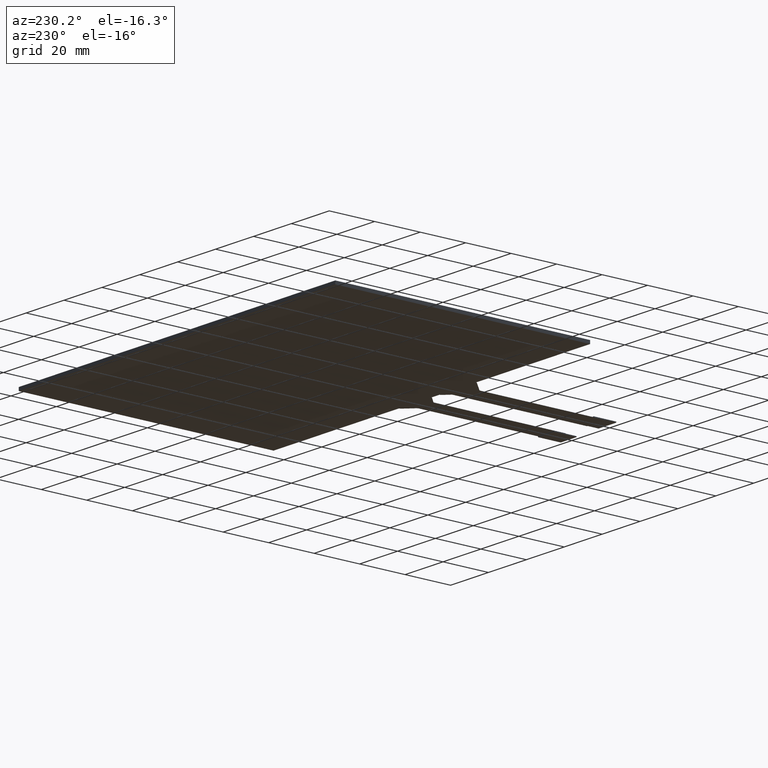
[diagram: clean part render]
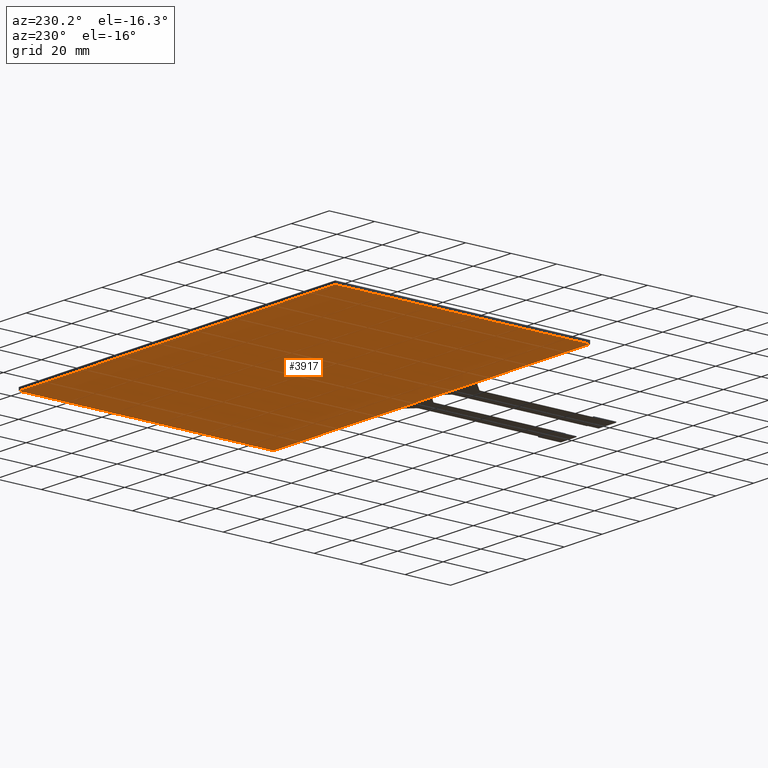
[diagram: same view with one face highlighted and labeled with its STEP entity id]
A machine part, auxiliary view. The second image highlights one B-rep face of the part: STEP entity #3917.
In plain terms, the highlighted planar face has unit normal (0, 0, -1).
Its self-contained STEP definition (entity closure, byte-faithful):
#227=PLANE('',#4151);
#417=FACE_OUTER_BOUND('',#611,.T.);
#611=EDGE_LOOP('',(#3712,#3713,#3714,#3715));
#1133=LINE('',#6207,#1661);
#1135=LINE('',#6211,#1663);
#1137=LINE('',#6215,#1665);
#1139=LINE('',#6218,#1667);
#1661=VECTOR('',#5093,10.);
#1663=VECTOR('',#5097,10.);
#1665=VECTOR('',#5101,10.);
#1667=VECTOR('',#5105,10.);
#2056=VERTEX_POINT('',#6204);
#2057=VERTEX_POINT('',#6206);
#2058=VERTEX_POINT('',#6210);
#2059=VERTEX_POINT('',#6214);
#2605=EDGE_CURVE('',#2057,#2056,#1133,.T.);
#2607=EDGE_CURVE('',#2058,#2057,#1135,.T.);
#2609=EDGE_CURVE('',#2059,#2058,#1137,.T.);
#2611=EDGE_CURVE('',#2056,#2059,#1139,.T.);
#3712=ORIENTED_EDGE('',*,*,#2611,.T.);
#3713=ORIENTED_EDGE('',*,*,#2609,.T.);
#3714=ORIENTED_EDGE('',*,*,#2607,.T.);
#3715=ORIENTED_EDGE('',*,*,#2605,.T.);
#3917=ADVANCED_FACE('',(#417),#227,.T.);
#4151=AXIS2_PLACEMENT_3D('',#6220,#5108,#5109);
#5093=DIRECTION('',(-1.58461805477275E-16,1.,0.));
#5097=DIRECTION('',(-1.,-5.31525086594928E-17,0.));
#5101=DIRECTION('',(0.,-1.,0.));
#5105=DIRECTION('',(1.,0.,0.));
#5108=DIRECTION('center_axis',(0.,0.,-1.));
#5109=DIRECTION('ref_axis',(-1.,0.,0.));
#6204=CARTESIAN_POINT('',(-83.55,53.65,-1.4));
#6206=CARTESIAN_POINT('',(-83.55,-58.45,-1.4));
#6207=CARTESIAN_POINT('',(-83.55,53.65,-1.4));
#6210=CARTESIAN_POINT('',(83.55,-58.45,-1.4));
#6211=CARTESIAN_POINT('',(-83.55,-58.45,-1.4));
#6214=CARTESIAN_POINT('',(83.55,53.65,-1.4));
#6215=CARTESIAN_POINT('',(83.55,-58.45,-1.4));
#6218=CARTESIAN_POINT('',(83.55,53.65,-1.4));
#6220=CARTESIAN_POINT('Origin',(-1.77635683940025E-14,-2.39999999999998,
-1.4));